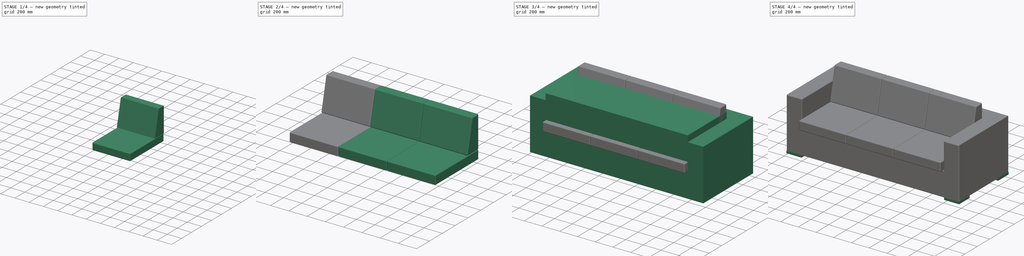
[diagram: build sequence overview — one tinted view per stage of 4, left to right]
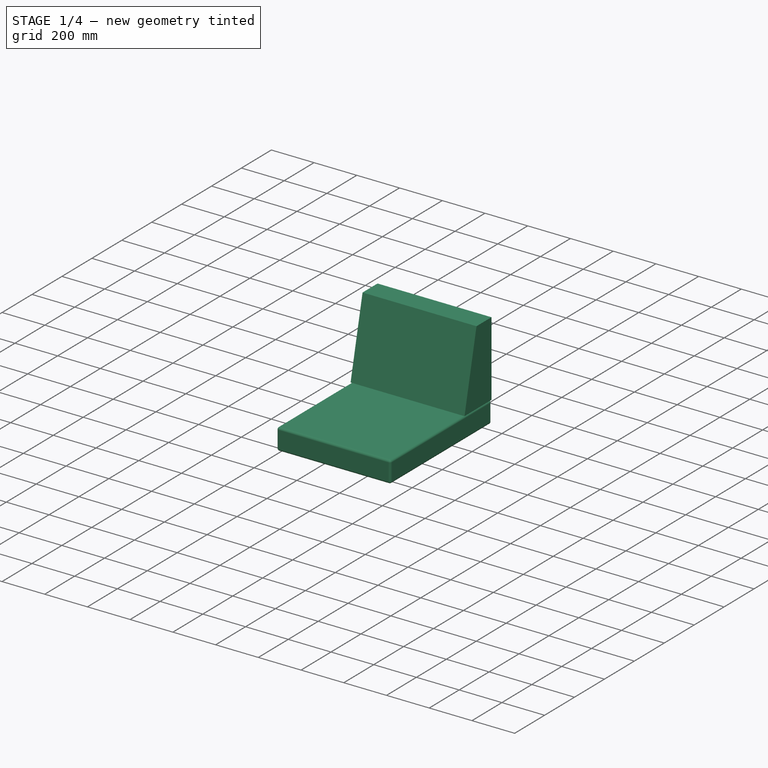
[diagram: stage 1 of 4 — iso view after this stage's code; geometry added in this stage tinted green]
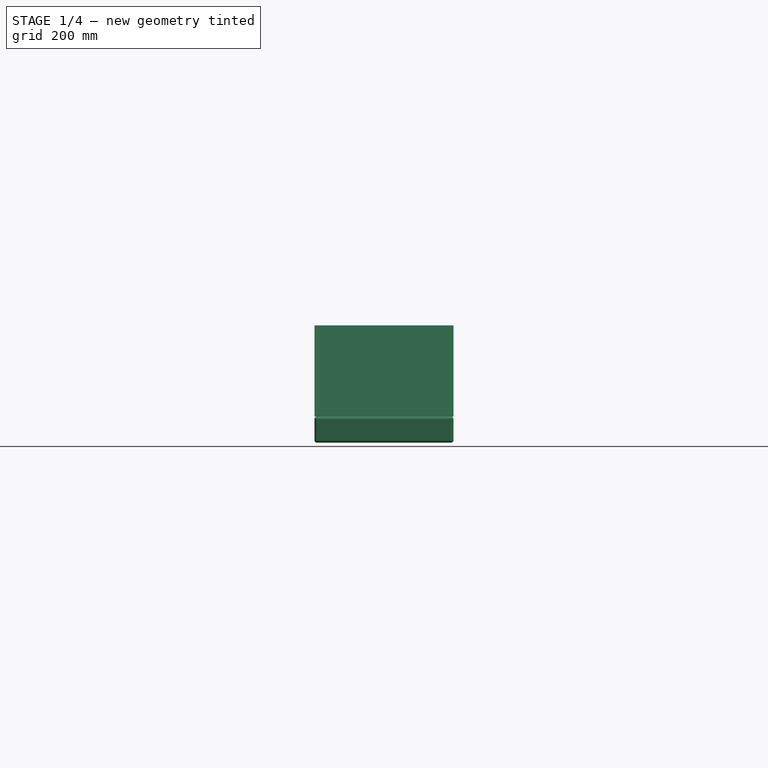
[diagram: stage 1 of 4 — front view after this stage's code; geometry added in this stage tinted green]
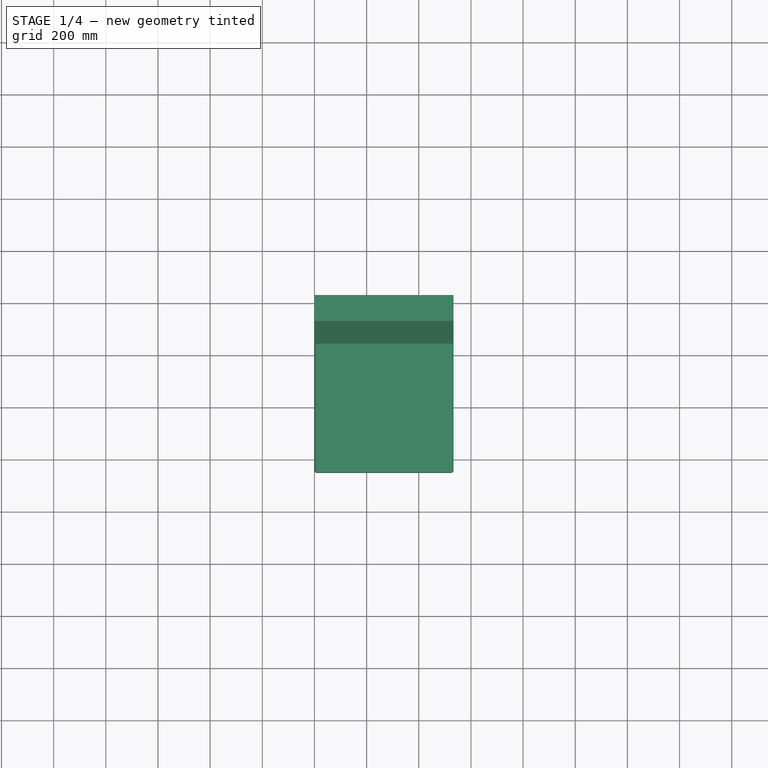
[diagram: stage 1 of 4 — top view after this stage's code; geometry added in this stage tinted green]
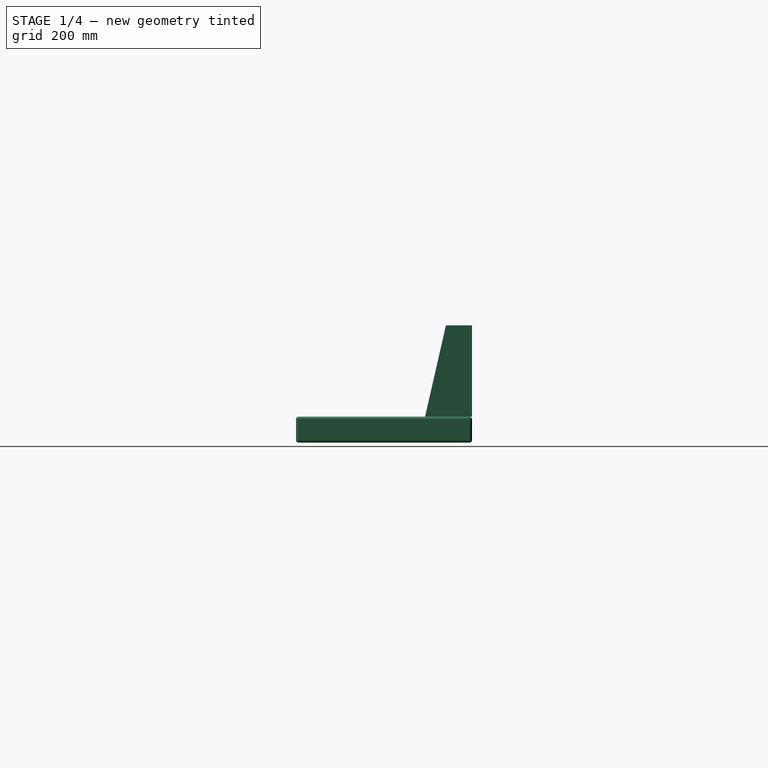
[diagram: stage 1 of 4 — right view after this stage's code; geometry added in this stage tinted green]
FCSTD DOCUMENT  (FreeCAD 1.0R38641 +468 (Git))
Label: Sofa_Armchair_R04
License: All rights reserved
LicenseURL: https://en.wikipedia.org/wiki/All_rights_reserved
objects: App::DocumentObjectGroup×12, Sketcher::SketchObject×8, App::MaterialObjectPython×6, App::TextDocument×5, Part::Extrusion×5, Part::Fillet×3, App::FeaturePython×3, Part::FeaturePython×2, Spreadsheet::Sheet×1, Part::Cut×1, App::VarSet×1, Part::Part2DObjectPython×1, App::DocumentObjectGroupPython×1
note: 31 computed .brp shape members not serialized (recipe doc carries the construction recipe); baked Part::Feature solids carry a one-line shape summary decoded from their .brp

FEATURE [Sketcher::SketchObject] Sketch1145
  ArcFitTolerance = 0
  AttachmentSupport = -> [Sketch1144]
  ExternalGeometry = -> [Sketch1144]
  FullyConstrained = true
  MakeInternals = false
  MapMode = 2
  Placement = pos=(0,0,300) rot=(0,0,1;0rad)
  expr: .Constraints.Length = (VarSet.Base_dimensions_B_Length - 2 * VarSet.Base_dimensions_B_Thickness_arms) / (VarSet.Seats_B_Number <= 1 ? 1 : VarSet.Seats_B_Number)
  expr: .Constraints.Width = VarSet.Seats_B_Width
  sketch-geometry (4):
    g0: LineSegment StartX=-800 StartY=-450 StartZ=0 EndX=-266.667 EndY=-450 EndZ=0
    g1: LineSegment StartX=-266.667 StartY=-450 StartZ=0 EndX=-266.667 EndY=225 EndZ=0
    g2: LineSegment StartX=-266.667 StartY=225 StartZ=0 EndX=-800 EndY=225 EndZ=0
    g3: LineSegment StartX=-800 StartY=225 StartZ=0 EndX=-800 EndY=-450 EndZ=0
  constraints (11):
    c: Coincident(g1,g2)
    c: Horizontal(g0)
    c: Horizontal(g2)
    c: Vertical(g1)
    c: Coincident(g3,g2)
    c: Vertical(g3)
    c: DistanceY(g1,g1) = 675  'Width'
    c: DistanceX(g0,g0) = 533.333  'Length'
    c: Coincident(g0,g3)
    c: Coincident(g0,g1)
    c: Coincident(g2,g-4)
FEATURE [Part::Extrusion] Extrude084143244  label="Seat_"
  Base = -> Sketch1145
  Dir = (0,0,1)
  DirMode = 2
  FaceMakerClass = Part::FaceMakerBullseye
  FaceMakerMode = 3
  LengthFwd = 100
  LengthRev = 0
  Solid = true
  Symmetric = false
  expr: LengthFwd = VarSet.Seats_B_Thickness
FEATURE [Sketcher::SketchObject] Sketch1146
  ArcFitTolerance = 0
  AttachmentOffset = pos=(0,0,266.667) rot=(0,0,1;0rad)
  AttachmentSupport = -> [Sketch1145]
  FullyConstrained = true
  MakeInternals = false
  MapMode = 7
  Placement = pos=(-533.333,225,300) rot=(0.57735,-0.57735,-0.57735;2.0944rad)
  expr: .AttachmentOffset.Base.z = Sketch1145.Constraints.Length / 2
  expr: .Constraints.Height_ = VarSet.Backrest_B_Height
  expr: .Constraints.Thickness_inferior = VarSet.Backrest_B_Thickness_inferior
  expr: .Constraints.Thickness_superior = VarSet.Backrest_B_Thickness_superior
  expr: Constraints[8] = VarSet.Seats_B_Thickness
  sketch-geometry (4):
    g0: LineSegment StartX=0 StartY=450 StartZ=0 EndX=0 EndY=100 EndZ=0
    g1: LineSegment StartX=0 StartY=100 StartZ=0 EndX=180 EndY=100 EndZ=0
    g2: LineSegment StartX=180 StartY=100 StartZ=0 EndX=100 EndY=450 EndZ=0
    g3: LineSegment StartX=100 StartY=450 StartZ=0 EndX=0 EndY=450 EndZ=0
  constraints (12):
    c: Vertical(g0)
    c: Horizontal(g1)
    c: Coincident(g1,g2)
    c: Coincident(g2,g3)
    c: Coincident(g3,g0)
    c: Horizontal(g3)
    c: DistanceY(g0,g0) = 350  'Height_'
    c: Coincident(g0,g1)
    c: DistanceY(g-1,g0) = 100
    c: DistanceX(g1,g1) = 180  'Thickness_inferior'
    c: DistanceX(g3,g3) = 100  'Thickness_superior'
    c: PointOnObject(g0,g-2)
FEATURE [Part::Extrusion] Extrude084143245  label="Backrest_unity_001"
  Base = -> Sketch1146
  Dir = (-1,0,0)
  DirMode = 2
  FaceMakerClass = Part::FaceMakerBullseye
  FaceMakerMode = 3
  LengthFwd = 533.333
  LengthRev = 0
  Reversed = true
  Solid = true
  Symmetric = true
  expr: LengthFwd = (VarSet.Base_dimensions_B_Length - 2 * VarSet.Base_dimensions_B_Thickness_arms) / (VarSet.Backrest_B_Number <= 1 ? 1 : VarSet.Backrest_B_Number)
FEATURE [Sketcher::SketchObject] Sketch1147
  ArcFitTolerance = 0
  AttachmentSupport = -> [Sketch]
  ExternalGeometry = -> [Sketch]
  FullyConstrained = true
  MakeInternals = false
  MapMode = 2
  expr: .Constraints.Length = VarSet.Base_dimensions_B_Length - VarSet.Feet_B_Length * 2
  expr: .Constraints.Width = VarSet.Base_dimensions_B_Width - VarSet.Feet_B_Length * 2
  sketch-geometry (21):
    g0: LineSegment StartX=-975 StartY=-400 StartZ=0 EndX=-805 EndY=-400 EndZ=0
    g1: LineSegment StartX=-805 StartY=-400 StartZ=0 EndX=-805 EndY=-230 EndZ=0
    g2: LineSegment StartX=-805 StartY=-230 StartZ=0 EndX=-975 EndY=-230 EndZ=0
    g3: LineSegment StartX=-975 StartY=-230 StartZ=0 EndX=-975 EndY=-400 EndZ=0
    g4: LineSegment StartX=-975 StartY=400 StartZ=0 EndX=-805 EndY=400 EndZ=0
    g5: LineSegment StartX=-805 StartY=400 StartZ=0 EndX=-805 EndY=230 EndZ=0
    g6: LineSegment StartX=-805 StartY=230 StartZ=0 EndX=-975 EndY=230 EndZ=0
    g7: LineSegment StartX=-975 StartY=230 StartZ=0 EndX=-975 EndY=400 EndZ=0
    g8: LineSegment StartX=975 StartY=400 StartZ=0 EndX=805 EndY=400 EndZ=0
    g9: LineSegment StartX=805 StartY=400 StartZ=0 EndX=805 EndY=230 EndZ=0
    g10: LineSegment StartX=805 StartY=230 StartZ=0 EndX=975 EndY=230 EndZ=0
    g11: LineSegment StartX=975 StartY=230 StartZ=0 EndX=975 EndY=400 EndZ=0
    g12: LineSegment StartX=975 StartY=-400 StartZ=0 EndX=805 EndY=-400 EndZ=0
    g13: LineSegment StartX=805 StartY=-400 StartZ=0 EndX=805 EndY=-230 EndZ=0
    g14: LineSegment StartX=805 StartY=-230 StartZ=0 EndX=975 EndY=-230 EndZ=0
    g15: LineSegment StartX=975 StartY=-230 StartZ=0 EndX=975 EndY=-400 EndZ=0
    g16: LineSegment [constr] StartX=805 StartY=-230 StartZ=0 EndX=805 EndY=230 EndZ=0
    g17: LineSegment [constr] StartX=805 StartY=230 StartZ=0 EndX=-805 EndY=230 EndZ=0
    g18: LineSegment [constr] StartX=-805 StartY=230 StartZ=0 EndX=-805 EndY=-230 EndZ=0
    g19: LineSegment [constr] StartX=-805 StartY=-230 StartZ=0 EndX=805 EndY=-230 EndZ=0
    g20: GeomPoint [constr] X=-1e-16 Y=0 Z=0
  constraints (52):
    c: Coincident(g0,g1)
    c: Coincident(g1,g2)
    c: Coincident(g2,g3)
    c: Coincident(g3,g0)
    c: Horizontal(g0)
    c: Horizontal(g2)
    c: Vertical(g1)
    c: Vertical(g3)
    c: Coincident(g0,g-5)
    c: Coincident(g4,g5)
    c: Coincident(g5,g6)
    c: Coincident(g6,g7)
    c: Coincident(g7,g4)
    c: Horizontal(g4)
    c: Horizontal(g6)
    c: Vertical(g5)
    c: Vertical(g7)
    c: Coincident(g4,g-4)
    c: Coincident(g8,g9)
    c: Coincident(g9,g10)
    c: Coincident(g10,g11)
    c: Coincident(g11,g8)
    c: Horizontal(g8)
    c: Horizontal(g10)
    c: Vertical(g9)
    c: Vertical(g11)
    c: Coincident(g8,g-6)
    c: Coincident(g12,g13)
    c: Coincident(g13,g14)
    c: Coincident(g14,g15)
    c: Coincident(g15,g12)
    c: Horizontal(g12)
    c: Horizontal(g14)
    c: Vertical(g13)
    c: Vertical(g15)
    c: Coincident(g12,g-6)
    c: Coincident(g16,g17)
    c: Coincident(g17,g18)
    c: Coincident(g18,g19)
    c: Coincident(g19,g16)
    c: Horizontal(g17)
    c: Horizontal(g19)
    c: Vertical(g16)
    c: Vertical(g18)
    c: Symmetric(g17,g16,g20)
    c: Coincident(g20,g-1)
    c: Coincident(g17,g5)
    c: Coincident(g9,g16)
    c: Coincident(g13,g16)
    c: Coincident(g1,g18)
    c: DistanceX(g17,g17) = 1610  'Length'
    c: DistanceY(g18,g18) = 460  'Width'
FEATURE [App::DocumentObjectGroup] Group247  label="02-Elements_to_move_rotate"
  Group = -> [Sketch]
FEATURE [Sketcher::SketchObject] Sketch1148  label="Sketch1148_Path_seats_"
  ArcFitTolerance = 0
  AttachmentSupport = -> [Sketch]
  FullyConstrained = true
  MakeInternals = false
  MapMode = 2
  expr: .Constraints.Length = VarSet.Seats_B_Length
  sketch-geometry (1):
    g0: LineSegment StartX=0 StartY=0 StartZ=0 EndX=1600 EndY=0 EndZ=0
  constraints (3):
    c: Coincident(g0,g-1)
    c: Horizontal(g0)
    c: DistanceX(g0,g0) = 1600  'Length'
FEATURE [Sketcher::SketchObject] Sketch1149  label="Sketch1149_Path_backrests_"
  ArcFitTolerance = 0
  AttachmentSupport = -> [Sketch]
  FullyConstrained = true
  MakeInternals = false
  MapMode = 2
  expr: .Constraints.Length = VarSet.Seats_B_Length
  sketch-geometry (1):
    g0: LineSegment StartX=0 StartY=0 StartZ=0 EndX=1600 EndY=0 EndZ=0
  constraints (3):
    c: Coincident(g0,g-1)
    c: Horizontal(g0)
    c: DistanceX(g0,g0) = 1600  'Length'
FEATURE [App::DocumentObjectGroup] Group252  label="06-Paths_"
  Group = -> [Sketch1148,Sketch1149]
FEATURE [Part::Fillet] Fillet
  Base = -> Extrude084143244
  EdgeLinks = -> Extrude084143244 [Edge1,Edge2,Edge3,Edge4,Edge5,Edge6,Edge7,Edge8,Edge9,Edge10,Edge11,Edge12]
  Edges = 12 edges r=10: [Edge1,Edge2,Edge3,Edge4,Edge5,Edge6,Edge7,Edge8,Edge9,Edge10,Edge11,Edge12]
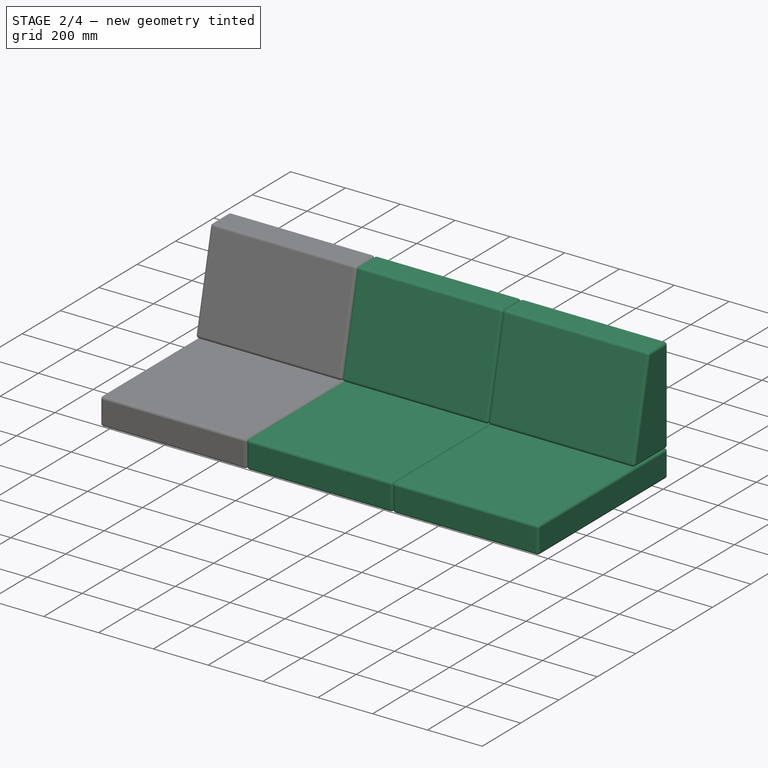
[diagram: stage 2 of 4 — iso view after this stage's code; geometry added in this stage tinted green]
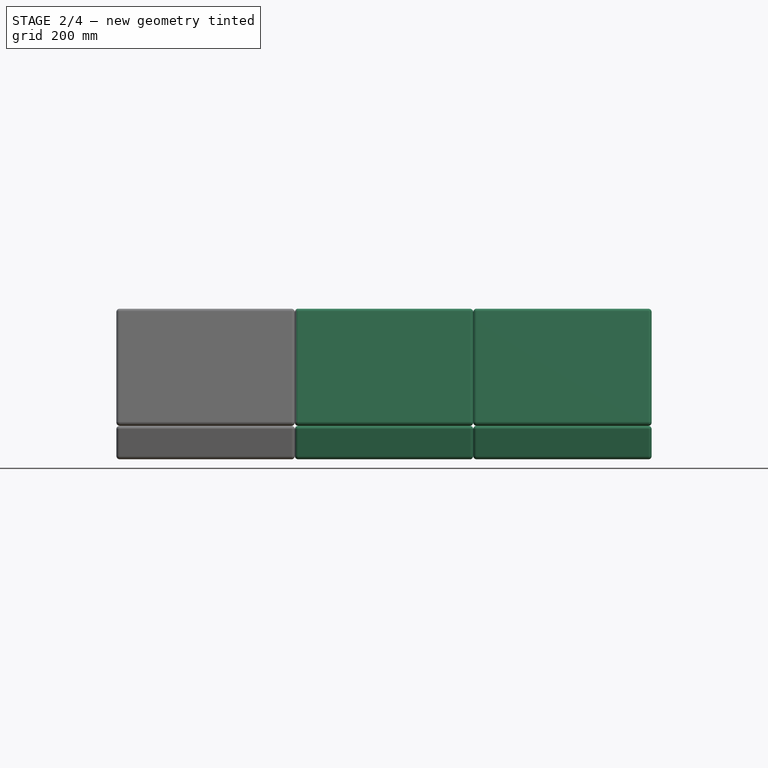
[diagram: stage 2 of 4 — front view after this stage's code; geometry added in this stage tinted green]
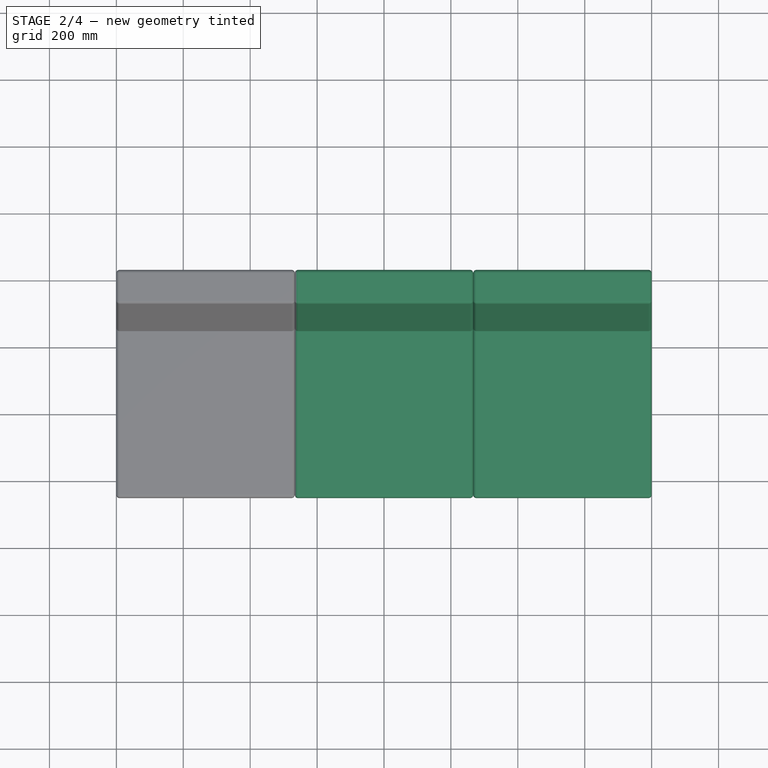
[diagram: stage 2 of 4 — top view after this stage's code; geometry added in this stage tinted green]
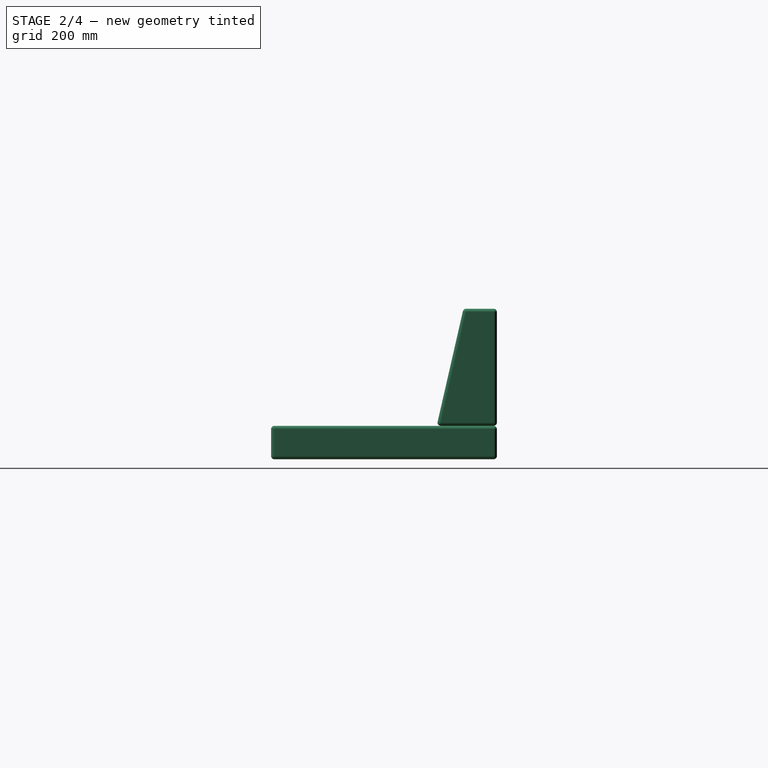
[diagram: stage 2 of 4 — right view after this stage's code; geometry added in this stage tinted green]
FEATURE [Part::Fillet] Fillet015152  label="Backrest_unity_"
  Base = -> Extrude084143245
  EdgeLinks = -> Extrude084143245 [Edge1,Edge2,Edge3,Edge4,Edge5,Edge6,Edge7,Edge8,Edge9,Edge10,Edge11,Edge12]
  Edges = 12 edges r=10: [Edge1,Edge2,Edge3,Edge4,Edge5,Edge6,Edge7,Edge8,Edge9,Edge10,Edge11,Edge12]
FEATURE [App::MaterialObjectPython] Material058  label="fabric generic001"  # material (typed FeaturePython)
  Description = A standard fabric
  Material = AuthorAndLicense=(c) 2015 Bernd Hahnebach (CC-BY 3.0); CardName=Wood-Generic; Color=(0.8, 0.8, 0.8, 1.0); Density=700 kg/m^3; Description=A standard fabric; DiffuseColor=(0.1568627506494522, 0.18039216101169586, 0.22745098173618317); Father=Aggregate; Name=fabric generic001; PoissonRatio=0.05; ProductURL=https://en.wikipedia.org/wiki/Wood; SectionColor=(0.8, 0.8, 0.8, 1.0); Transparency=0; ViewColor=(0.8, 0.8, 0.8, 1.0); YoungsModulus=12000 MPa
  ProductURL = https://en.wikipedia.org/wiki/Wood
  Transparency = 0
FEATURE [App::VarSet] VarSet  label="01-Prop_Sofa_Armchair_configurations_#_"
  A_Component_Label = Sofa three seats
  Backrest_B_Height = 350
  Backrest_B_Number = 3
  Backrest_B_Thickness_inferior = 180
  Backrest_B_Thickness_superior = 100
  Backrest_C_Material = -> Material058
  Base_dimensions_B_Height = 600
  Base_dimensions_B_Length = 1950
  Base_dimensions_B_Thickness_arms = 175
  Base_dimensions_B_Width = 800
  Base_dimensions_C_Material = -> Material057
  Feet_A_Feet = false
  Feet_B_Height = 25
  Feet_B_Length = 170
  Feet_C_Material = -> Material049
  Seats_B_Depth = 370
  Seats_B_Height_floor = 400
  Seats_B_Length = 1600
  Seats_B_Number = 3
  Seats_B_Thickness = 100
  Seats_B_Width = 675
  Seats_C_Material = -> Material058
  Visualization_A_Visualization = true
  expr: Seats_B_Length = Base_dimensions_B_Length - 2 * Base_dimensions_B_Thickness_arms
FEATURE [Part::FeaturePython] PathArray  label="02-PathArray_Seats_"  # WARN: FeaturePython — macro-defined, semantics opaque (R4)
  Align = false
  AlignMode = 0
  Base = -> Fillet
  Count = 3
  EndOffset = 533.333
  ExtraTranslation = (0,0,0)
  ForceVertical = false
  Fuse = false
  Material = -> Material058
  PathObject = -> Sketch1148
  StartOffset = 0
  TangentVector = (1,0,0)
  VerticalVector = (0,0,1)
  expr: .ExtraTranslation.x = -Sketch1148.Placement.Base.x
  expr: .ExtraTranslation.y = -Sketch1148.Placement.Base.y
  expr: .ExtraTranslation.z = -Sketch1148.Placement.Base.z
  expr: Count = VarSet.Seats_B_Number <= 1 ? 1 : VarSet.Seats_B_Number
  expr: EndOffset = VarSet.Seats_B_Length / (VarSet.Seats_B_Number <= 1 ? 1 : VarSet.Seats_B_Number)
  expr: Material = VarSet.Seats_C_Material
  expr: Visibility = VarSet.Visualization_A_Visualization
FEATURE [Part::FeaturePython] PathArray001  label="03-PathArray001_Backrests_"  # WARN: FeaturePython — macro-defined, semantics opaque (R4)
  Align = false
  AlignMode = 0
  Base = -> Fillet015152
  Count = 3
  EndOffset = 533.333
  ExtraTranslation = (0,0,0)
  ForceVertical = false
  Fuse = false
  Material = -> Material058
  PathObject = -> Sketch1149
  StartOffset = 0
  TangentVector = (1,0,0)
  VerticalVector = (0,0,1)
  expr: .ExtraTranslation.x = -Sketch1149.Placement.Base.x
  expr: .ExtraTranslation.y = -Sketch1149.Placement.Base.y
  expr: .ExtraTranslation.z = -Sketch1149.Placement.Base.z
  expr: Count = VarSet.Backrest_B_Number <= 1 ? 1 : VarSet.Backrest_B_Number
  expr: EndOffset = VarSet.Seats_B_Length / (VarSet.Backrest_B_Number <= 1 ? 1 : VarSet.Backrest_B_Number)
  expr: Material = VarSet.Backrest_C_Material
  expr: Visibility = VarSet.Visualization_A_Visualization
FEATURE [App::DocumentObjectGroup] Group248  label="03-Component_parts_"
  Group = -> [Fillet015151,PathArray,PathArray001,Extrude084143246]
FEATURE [App::FeaturePython] Section003  label="Plan_"  # WARN: FeaturePython — macro-defined, semantics opaque (R4)
  AttacherType = Attacher::AttachEngine3D
  AttachmentOffset = pos=(0,0,1000) rot=(0,0,1;0rad)
  AttachmentSupport = -> [Sketch]
  Clip = false
  Depth = 0
  MapMode = 2
  Objects = -> [Group248]
  OnlySolids = true
  Placement = pos=(0,0,1000) rot=(0,0,1;0rad)
  UseMaterialColorForFill = false
  expr: .AttachmentOffset.Base.z = VarSet.Base_dimensions_B_Height + 400 mm
FEATURE [App::FeaturePython] Section004  label="Right_view_"  # WARN: FeaturePython — macro-defined, semantics opaque (R4)
  AttacherType = Attacher::AttachEngine3D
  AttachmentOffset = pos=(0,600,1375) rot=(0,0,1;0rad)
  AttachmentSupport = -> [Sketch]
  Clip = false
  Depth = 0
  MapMode = 4
  Objects = -> [Group248]
  OnlySolids = true
  Placement = pos=(1375,0,600) rot=(0.57735,0.57735,0.57735;2.0944rad)
  UseMaterialColorForFill = false
  expr: .AttachmentOffset.Base.z = VarSet.Base_dimensions_B_Length / 2 + 400 mm
FEATURE [App::FeaturePython] Section005  label="Left_view_"  # WARN: FeaturePython — macro-defined, semantics opaque (R4)
  AttacherType = Attacher::AttachEngine3D
  AttachmentOffset = pos=(0,600,1375) rot=(0,0,1;0rad)
  AttachmentSupport = -> [Sketch]
  Clip = false
  Depth = 0
  MapMode = 4
  Objects = -> [Group248]
  OnlySolids = true
  Placement = pos=(-1375,0,600) rot=(0.57735,-0.57735,-0.57735;2.0944rad)
  UseMaterialColorForFill = false
  expr: .AttachmentOffset.Base.z = VarSet.Base_dimensions_B_Length / 2 + 400 mm
FEATURE [Part::Part2DObjectPython] Shape2DView003  label="Plan_Sofa three seats_#"  # Draft 2D object (typed FeaturePython)
  AutoUpdate = true
  Base = -> Section003
  Clip = false
  FuseArch = false
  HiddenLines = false
  InPlace = false
  OnlySolids = false
  Projection = (0,0,1)
  ProjectionMode = 0
  SegmentLength = 0.05
  Tessellation = false
  VisibleOnly = false
  expr: Label = <<Plan_>> + VarSet.A_Component_Label + <<_#>>
FEATURE [App::DocumentObjectGroup] Group006  label="09-Section_plan_#_"
  Group = -> [Section003,Section004,Section005,Shape2DView003]
FEATURE [App::DocumentObjectGroup] Group304  label="Fabric_"
  Group = -> [Material057,Material058]
FEATURE [App::DocumentObjectGroupPython] MaterialContainer001  label="02-Materials"  # scripted group (container) (typed FeaturePython)
  Group = -> [Group304,Group295,Group294]
FEATURE [App::DocumentObjectGroup] Group251  label="08-Materials_sofa_Armchair_#_"
  Group = -> [MaterialContainer001]
FEATURE [App::DocumentObjectGroup] Group013  label="Sofa three seats_#_"
  Group = -> [VarSet,Group247,Group248,Group249,Group250,Group252,Group256,Group251,Group006]
  expr: Label = VarSet.A_Component_Label + <<_#_>>
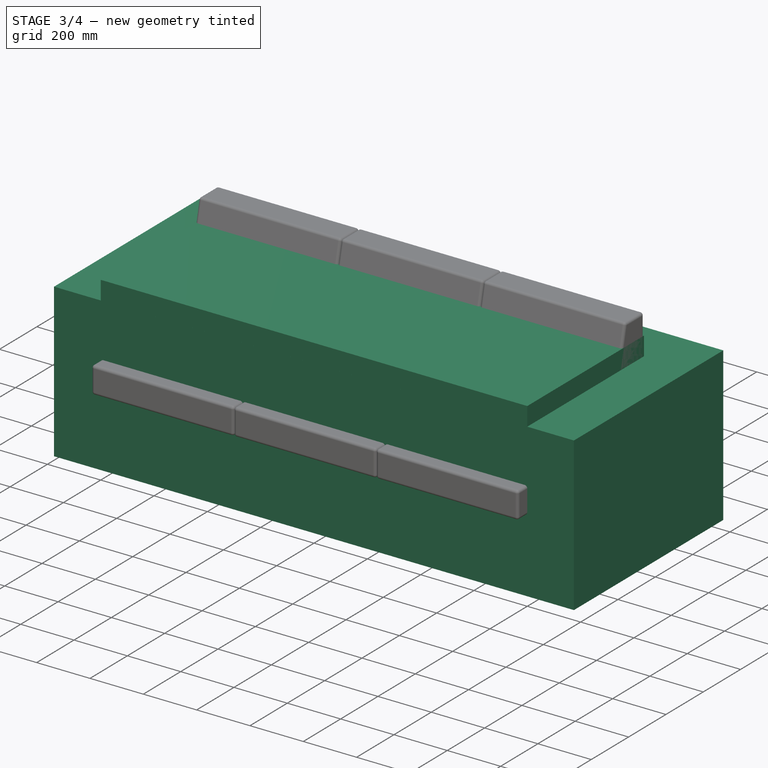
[diagram: stage 3 of 4 — iso view after this stage's code; geometry added in this stage tinted green]
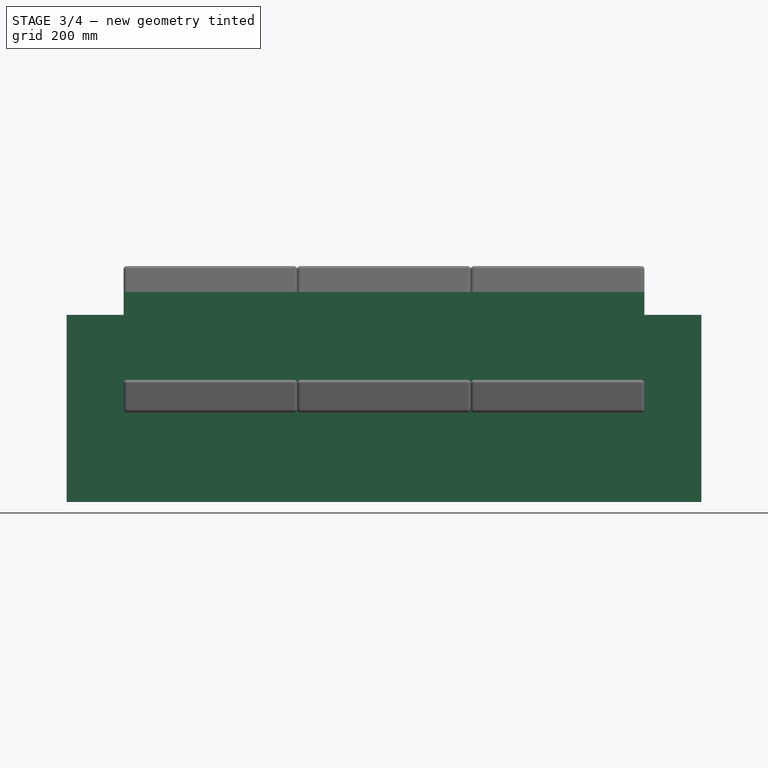
[diagram: stage 3 of 4 — front view after this stage's code; geometry added in this stage tinted green]
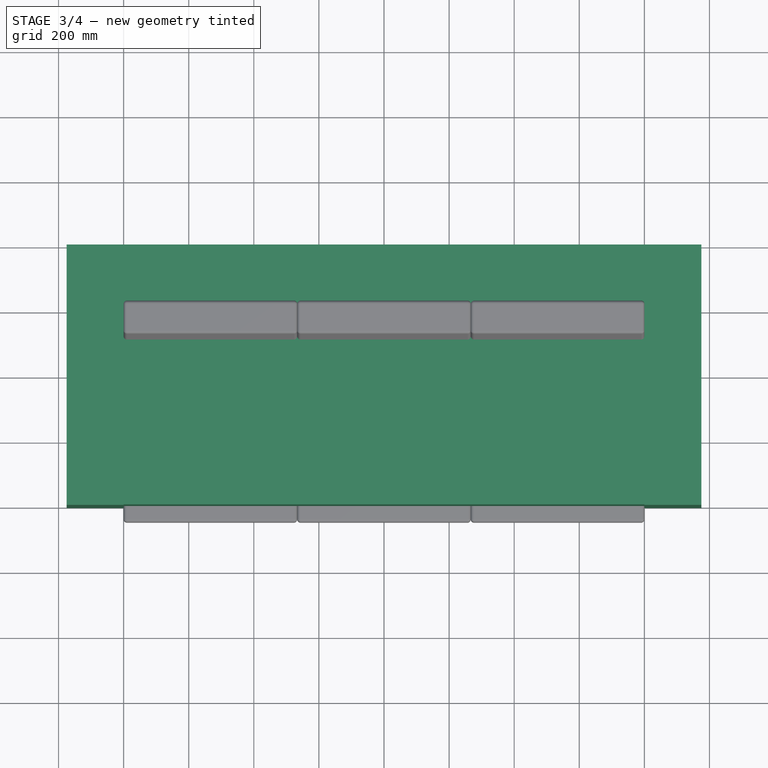
[diagram: stage 3 of 4 — top view after this stage's code; geometry added in this stage tinted green]
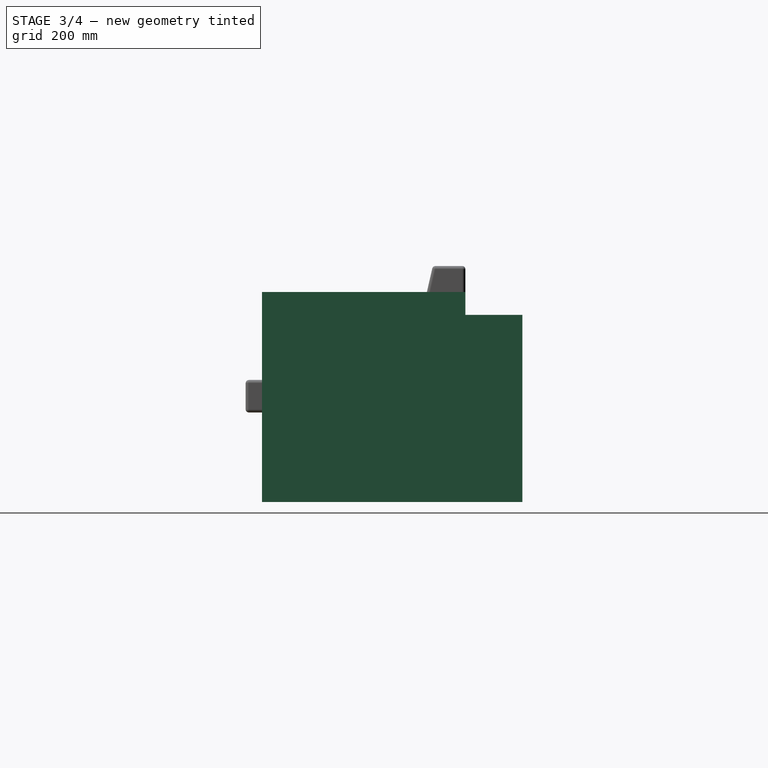
[diagram: stage 3 of 4 — right view after this stage's code; geometry added in this stage tinted green]
FEATURE [Spreadsheet::Sheet] Spreadsheet003  label="Spreadsheet_Sofa three seats_outputs_#"
  cells = A1='Description:; A2==<<%s>> % VarSet.A_Component_Label + << with %s x %s x %s>> % tuple(VarSet.Base_dimensions_B_Length; VarSet.Base_dimensions_B_Width; VarSet.Base_dimensions_B_Height) + << in length, width and height, body of %s>> % VarSet.Base_dimensions_C_Material.Label + <<, composed of %s>> % VarSet.Seats_B_Number + << seats of %s>> % VarSet.Seats_C_Material.Label + <<, %s>> % VarSet.Backrest_B_Number + << backrests of %s>> % VarSet.Backrest_C_Material.Label + << and feet of %s>> % VarSet.Feet_C_Material.Label + <<.>>; A3='Parts; B3='L; C3='H; D3='W; E3='T; F3='D; G3='Materials; H3='Quantities; A4='01-Body; B4==VarSet.Base_dimensions_B_Length; C4==VarSet.Base_dimensions_B_Height; D4==VarSet.Base_dimensions_B_Width; G4==VarSet.Base_dimensions_C_Material.Label; H4=1; A5='02-Seats; B5==VarSet.Seats_B_Length / VarSet.Seats_B_Number; D5==VarSet.Seats_B_Width; E5==VarSet.Seats_B_Thickness; G5==VarSet.Seats_C_Material.Label; H5==VarSet.Seats_B_Number; A6='03-Backrests; B6==VarSet.Seats_B_Length / VarSet.Backrest_B_Number; C6==VarSet.Backrest_B_Height; D6==VarSet.Backrest_B_Height; E6==<< from %s>> % VarSet.Backrest_B_Thickness_superior + << to %s>> % VarSet.Backrest_B_Thickness_inferior; G6==VarSet.Backrest_C_Material.Label; H6==VarSet.Backrest_B_Number; A7='04-Feet; B7==VarSet.Feet_B_Length; C7==VarSet.Feet_B_Height; D7==VarSet.Feet_B_Length; G7==VarSet.Feet_C_Material.Label; H7=4
  expr: Label = <<Spreadsheet_>> + VarSet.A_Component_Label + <<_outputs_#>>
FEATURE [App::DocumentObjectGroup] Group249  label="04-Spreadsheet_"
  Group = -> [Spreadsheet003]
FEATURE [App::TextDocument] Text_document002  label="Component_file_configurations_"
  Text = <blob: 3160 chars omitted>
FEATURE [App::TextDocument] Text_document003  label="Guidelines_new_objects_properties_"
  Text = <blob: 3302 chars omitted>
FEATURE [App::DocumentObjectGroup] Group250  label="05-Guidelines_"
  Group = -> [Text_document002,Text_document003]
FEATURE [Sketcher::SketchObject] Sketch  label="Sofa three seats_move_rotate_#_"
  ArcFitTolerance = 0
  FullyConstrained = true
  MakeInternals = false
  expr: .Constraints.Length = VarSet.Base_dimensions_B_Length
  expr: .Constraints.Width = VarSet.Base_dimensions_B_Width
  expr: Constraints[41] = VarSet.Base_dimensions_B_Thickness_arms
  expr: Constraints[42] = VarSet.Base_dimensions_B_Thickness_arms
  expr: Constraints[43] = VarSet.Base_dimensions_B_Thickness_arms
  expr: Label = VarSet.A_Component_Label + <<_move_rotate_#_>>
  sketch-geometry (16):
    g0: LineSegment StartX=-975 StartY=400 StartZ=0 EndX=-975 EndY=-400 EndZ=0
    g1: LineSegment StartX=-975 StartY=-400 StartZ=0 EndX=975 EndY=-400 EndZ=0
    g2: LineSegment StartX=975 StartY=-400 StartZ=0 EndX=975 EndY=400 EndZ=0
    g3: LineSegment StartX=975 StartY=400 StartZ=0 EndX=-975 EndY=400 EndZ=0
    g4: GeomPoint [constr] X=0 Y=0 Z=0
    g5: Circle CenterX=0 CenterY=0 CenterZ=0 NormalX=0 NormalY=0 NormalZ=1 AngleXU=0 Radius=50
    g6: LineSegment [constr] StartX=-1075 StartY=500 StartZ=0 EndX=-1075 EndY=-500 EndZ=0
    g7: LineSegment [constr] StartX=-1075 StartY=-500 StartZ=0 EndX=1075 EndY=-500 EndZ=0
    g8: LineSegment [constr] StartX=1075 StartY=-500 StartZ=0 EndX=1075 EndY=500 EndZ=0
    g9: LineSegment [constr] StartX=1075 StartY=500 StartZ=0 EndX=-1075 EndY=500 EndZ=0
    g10: GeomPoint [constr] X=0 Y=0 Z=0
    g11: LineSegment StartX=-1075 StartY=0 StartZ=0 EndX=1075 EndY=0 EndZ=0
    g12: LineSegment StartX=0 StartY=500 StartZ=0 EndX=0 EndY=-500 EndZ=0
    g13: LineSegment StartX=-800 StartY=225 StartZ=0 EndX=800 EndY=225 EndZ=0
    g14: LineSegment StartX=-800 StartY=225 StartZ=0 EndX=-800 EndY=-400 EndZ=0
    g15: LineSegment StartX=800 StartY=225 StartZ=0 EndX=800 EndY=-400 EndZ=0
  constraints (44):
    c: Coincident(g0,g1)
    c: Coincident(g1,g2)
    c: Coincident(g2,g3)
    c: Coincident(g3,g0)
    c: Horizontal(g1)
    c: Horizontal(g3)
    c: Vertical(g0)
    c: Vertical(g2)
    c: Symmetric(g1,g0,g4)
    c: Coincident(g4,g-1)
    c: DistanceX(g3,g3) = 1950  'Length'
    c: DistanceY(g2,g2) = 800  'Width'
    c: Coincident(g5,g4)
    c: Diameter(g5) = 100
    c: Coincident(g6,g7)
    c: Coincident(g7,g8)
    c: Coincident(g8,g9)
    c: Coincident(g9,g6)
    c: Horizontal(g7)
    c: Horizontal(g9)
    c: Vertical(g6)
    c: Vertical(g8)
    c: Symmetric(g7,g6,g10)
    c: Coincident(g10,g4)
    c: DistanceX(g2,g8) = 100
    c: DistanceY(g2,g8) = 100
    c: PointOnObject(g11,g6)
    c: PointOnObject(g11,g8)
    c: Horizontal(g11)
    c: PointOnObject(g12,g9)
    c: PointOnObject(g12,g7)
    c: Vertical(g12)
    c: PointOnObject(g12,g-2)
    c: PointOnObject(g11,g-1)
    c: Horizontal(g13)
    c: PointOnObject(g14,g1)
    c: Vertical(g14)
    c: PointOnObject(g15,g1)
    c: Vertical(g15)
    c: Coincident(g14,g13)
    c: Coincident(g13,g15)
    c: DistanceX(g13,g2) = 175
    c: DistanceX(g0,g13) = 175
    c: DistanceY(g13,g2) = 175
FEATURE [Sketcher::SketchObject] Sketch1143
  ArcFitTolerance = 0
  AttachmentOffset = pos=(0,0,25) rot=(0,0,1;0rad)
  AttachmentSupport = -> [Sketch]
  Dimensions_Length = 1790
  FullyConstrained = true
  MakeInternals = false
  MapMode = 2
  Placement = pos=(0,0,25) rot=(0,0,1;0rad)
  expr: .AttachmentOffset.Base.z = VarSet.Feet_B_Height
  expr: .Constraints.Lenght_ = VarSet.Base_dimensions_B_Length
  expr: .Constraints.Width_ = VarSet.Base_dimensions_B_Width
  expr: .Placement.Base.z = VarSet.Feet_B_Height
  expr: Dimensions_Length = 1790 mm
  sketch-geometry (4):
    g0: LineSegment StartX=-975 StartY=400 StartZ=0 EndX=975 EndY=400 EndZ=0
    g1: LineSegment StartX=975 StartY=400 StartZ=0 EndX=975 EndY=-400 EndZ=0
    g2: LineSegment StartX=975 StartY=-400 StartZ=0 EndX=-975 EndY=-400 EndZ=0
    g3: LineSegment StartX=-975 StartY=-400 StartZ=0 EndX=-975 EndY=400 EndZ=0
  constraints (10):
    c: Coincident(g0,g1)
    c: Coincident(g1,g2)
    c: Coincident(g2,g3)
    c: Coincident(g3,g0)
    c: Horizontal(g2)
    c: Vertical(g3)
    c: Symmetric(g0,g0,g-2)
    c: Symmetric(g0,g1,g-1)
    c: DistanceY(g1,g1) = 800  'Width_'
    c: DistanceX(g0,g0) = 1950  'Lenght_'
FEATURE [Part::Extrusion] Extrude084143242  label="Extrude084143243"
  Base = -> Sketch1143
  Dir = (0,0,1)
  DirMode = 2
  FaceMakerClass = Part::FaceMakerBullseye
  FaceMakerMode = 3
  LengthFwd = 575
  LengthRev = 0
  Solid = true
  Symmetric = false
  expr: LengthFwd = VarSet.Base_dimensions_B_Height - VarSet.Feet_B_Height
FEATURE [Sketcher::SketchObject] Sketch1144
  ArcFitTolerance = 0
  AttachmentOffset = pos=(0,0,300) rot=(0,0,1;0rad)
  AttachmentSupport = -> [Sketch]
  ExternalGeometry = -> [Sketch]
  FullyConstrained = true
  MakeInternals = false
  MapMode = 2
  Placement = pos=(0,0,300) rot=(0,0,1;0rad)
  expr: .AttachmentOffset.Base.z = VarSet.Seats_B_Height_floor - VarSet.Seats_B_Thickness
  expr: .Constraints.Arm_thickness_left = VarSet.Base_dimensions_B_Thickness_arms
  expr: .Constraints.Arm_thickness_rear = VarSet.Base_dimensions_B_Thickness_arms
  expr: .Constraints.Arm_thickness_right = VarSet.Base_dimensions_B_Thickness_arms
  sketch-geometry (4):
    g0: LineSegment StartX=-800 StartY=225 StartZ=0 EndX=800 EndY=225 EndZ=0
    g1: LineSegment StartX=800 StartY=225 StartZ=0 EndX=800 EndY=-400 EndZ=0
    g2: LineSegment StartX=800 StartY=-400 StartZ=0 EndX=-800 EndY=-400 EndZ=0
    g3: LineSegment StartX=-800 StartY=-400 StartZ=0 EndX=-800 EndY=225 EndZ=0
  constraints (12):
    c: Coincident(g0,g1)
    c: Coincident(g1,g2)
    c: Coincident(g2,g3)
    c: Coincident(g3,g0)
    c: Horizontal(g0)
    c: Horizontal(g2)
    c: Vertical(g1)
    c: Vertical(g3)
    c: DistanceX(g1,g-5) = 175  'Arm_thickness_right'
    c: DistanceY(g0,g-3) = 175  'Arm_thickness_rear'
    c: DistanceX(g-5,g2) = 175  'Arm_thickness_left'
    c: Horizontal(g2,g-5)
FEATURE [Part::Extrusion] Extrude084143243  label="Extrude084143244"
  Base = -> Sketch1144
  Dir = (0,0,1)
  DirMode = 2
  FaceMakerClass = Part::FaceMakerBullseye
  FaceMakerMode = 3
  LengthFwd = 370
  LengthRev = 0
  Solid = true
  Symmetric = false
  expr: LengthFwd = VarSet.Seats_B_Depth
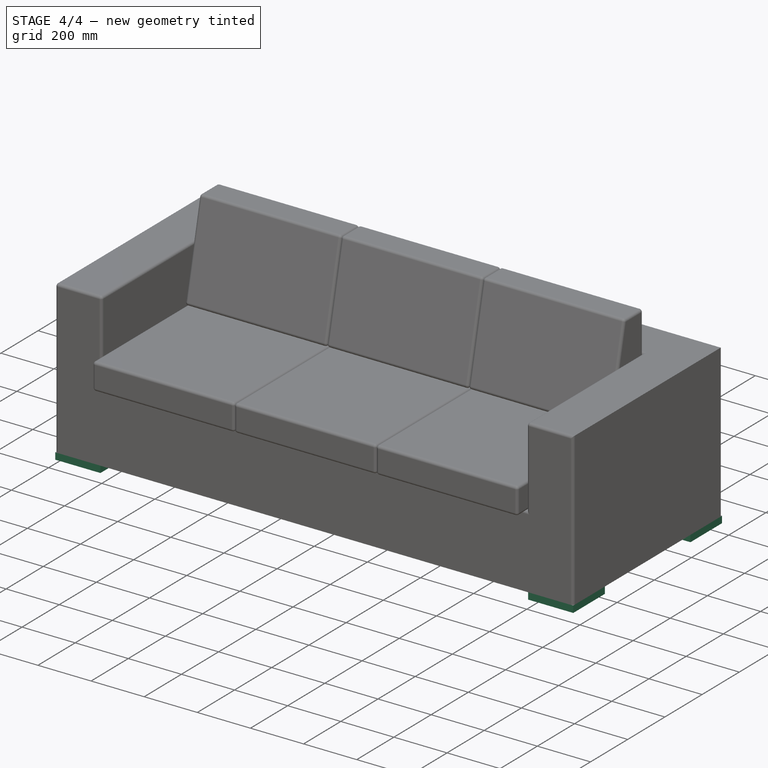
[diagram: stage 4 of 4 — iso view after this stage's code; geometry added in this stage tinted green]
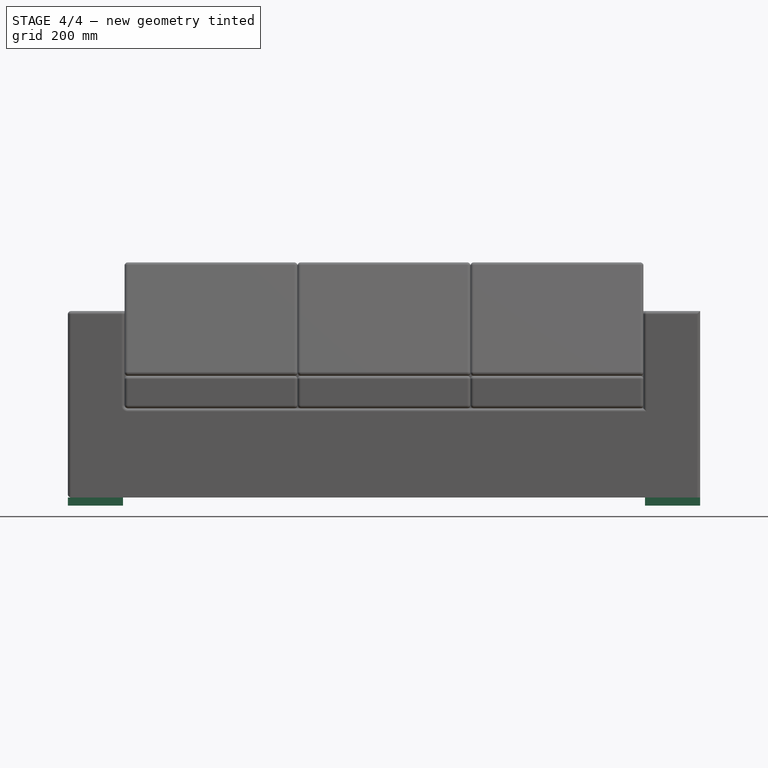
[diagram: stage 4 of 4 — front view after this stage's code; geometry added in this stage tinted green]
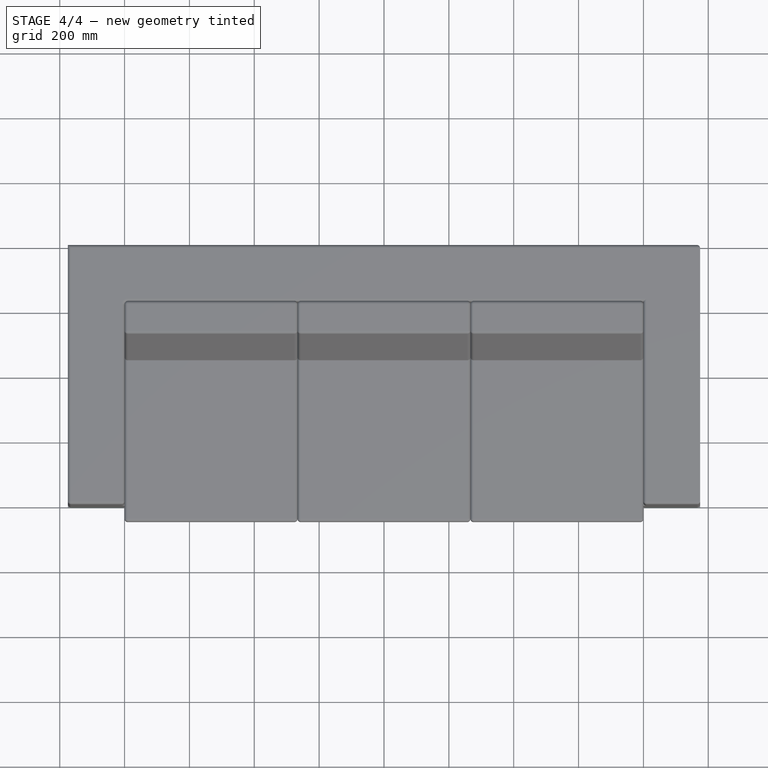
[diagram: stage 4 of 4 — top view after this stage's code; geometry added in this stage tinted green]
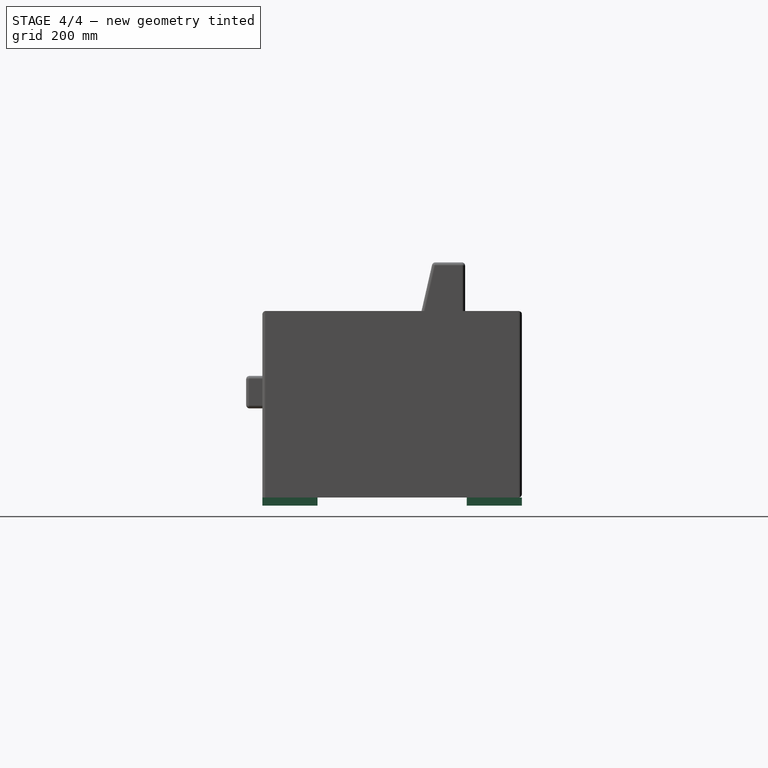
[diagram: stage 4 of 4 — right view after this stage's code; geometry added in this stage tinted green]
FEATURE [Part::Cut] Cut001  label="Body_001"
  Base = -> Extrude084143242
  Tool = -> Extrude084143243
FEATURE [App::TextDocument] Text_document011  label="Model_01_Sofa_3_seats_"
  Text = <blob: 2215 chars omitted>
FEATURE [App::TextDocument] Text_document012  label="Model_02_Sofa_2_seats_"
  Text = <blob: 2213 chars omitted>
FEATURE [App::TextDocument] Text_document013  label="Model_03_Armchair_"
  Text = <blob: 2214 chars omitted>
FEATURE [App::DocumentObjectGroup] Group256  label="07-Macros_models_(open_copy_paste_Python_console)"
  Group = -> [Text_document011,Text_document012,Text_document013]
FEATURE [App::MaterialObjectPython] Material048  label="aluminum generic"  # material (typed FeaturePython)
  Material = AuthorAndLicense=Uwe Stöhr; CardName=Aluminum-Generic; Color=(0.8, 0.8, 0.8, 1.0); Density=2700 kg/m^3; DiffuseColor=(0.8, 0.8, 0.8, 1.0); ElectricalConductivity=370370.4 S/m; Father=Metal; KindOfMaterial=Aluminium; Name=aluminum generic; PoissonRatio=0.35; RelativePermeability=1.0; SectionColor=(0.8, 0.8, 0.8, 1.0); ShearModulus=25.0 GPa; SpecificHeat=897.0 J/kg/K; ThermalConductivity=237.0 W/m/K; ThermalExpansionCoefficient=23.1 µm/m/K; Transparency=0; UltimateTensileStrength=310 MPa; ViewColor=(0.8, 0.8, 0.8, 1.0); YoungsModulus=70000 MPa
  Transparency = 0
FEATURE [App::MaterialObjectPython] Material049  label="iron generic"  # material (typed FeaturePython)
  Material = AuthorAndLicense=Uwe Stöhr; CardName=Iron-Generic; Color=(0.8, 0.8, 0.8, 1.0); Density=7874 kg/m^3; DiffuseColor=(0.3607843220233917, 0.3607843220233917, 0.40784314274787903); ElectricalConductivity=10.3 MS/m; Father=Metal; KindOfMaterial=Iron; Name=iron generic; PoissonRatio=0.29; RelativePermeability=5000.0; SectionColor=(0.8, 0.8, 0.8, 1.0); ShearModulus=82.0 GPa; SpecificHeat=460.5 J/kg/K; ThermalConductivity=80.4 W/m/K; ThermalExpansionCoefficient=11.8 µm/m/K; Transparency=0; UltimateTensileStrength=497 MPa; ViewColor=(0.8, 0.8, 0.8, 1.0); YieldStrength=428 MPa; YoungsModulus=211 GPa
  Transparency = 0
FEATURE [Part::Extrusion] Extrude084143246  label="04-Feet_"
  Base = -> Sketch1147
  Dir = (0,0,1)
  DirMode = 2
  FaceMakerClass = Part::FaceMakerBullseye
  FaceMakerMode = 3
  LengthFwd = 25
  LengthRev = 0
  Material = -> Material049
  Solid = true
  Symmetric = false
  expr: LengthFwd = VarSet.Feet_B_Height
  expr: Material = VarSet.Feet_C_Material
  expr: Visibility = VarSet.Visualization_A_Visualization
FEATURE [App::DocumentObjectGroup] Group295  label="Metal_"
  Group = -> [Material049,Material048]
FEATURE [App::MaterialObjectPython] Material053  label="wood generic"  # material (typed FeaturePython)
  Description = A standard construction wood
  Material = AuthorAndLicense=(c) 2015 Bernd Hahnebach (CC-BY 3.0); CardName=Wood-Generic; Color=(0.8, 0.8, 0.8, 1.0); Density=700 kg/m^3; Description=A standard construction wood; DiffuseColor=(0.45490196347236633, 0.22745098173618317, 0.0); Father=Aggregate; Name=wood generic; PoissonRatio=0.05; ProductURL=https://en.wikipedia.org/wiki/Wood; SectionColor=(0.8, 0.8, 0.8, 1.0); Transparency=0; ViewColor=(0.8, 0.8, 0.8, 1.0); YoungsModulus=12000 MPa
  ProductURL = https://en.wikipedia.org/wiki/Wood
  Transparency = 0
FEATURE [App::MaterialObjectPython] Material055  label="white Formica generic"  # material (typed FeaturePython)
  Description = A standard ceramic
  Material = AuthorAndLicense=(c) 2015 Bernd Hahnebach (CC-BY 3.0); CardName=Wood-Generic; Color=(0.8, 0.8, 0.8, 1.0); Density=700 kg/m^3; Description=A standard ceramic; DiffuseColor=(1.0, 1.0, 1.0); Father=Aggregate; Name=white Formica generic; PoissonRatio=0.05; ProductURL=https://en.wikipedia.org/wiki/Wood; SectionColor=(0.8, 0.8, 0.8, 1.0); Transparency=0; ViewColor=(0.8, 0.8, 0.8, 1.0); YoungsModulus=12000 MPa
  ProductURL = https://en.wikipedia.org/wiki/Wood
  Transparency = 0
FEATURE [App::DocumentObjectGroup] Group294  label="Wood_"
  Group = -> [Material053,Material055]
FEATURE [App::MaterialObjectPython] Material057  label="fabric generic"  # material (typed FeaturePython)
  Description = A standard fabric
  Material = AuthorAndLicense=(c) 2015 Bernd Hahnebach (CC-BY 3.0); CardName=Wood-Generic; Color=(0.8, 0.8, 0.8, 1.0); Density=700 kg/m^3; Description=A standard fabric; DiffuseColor=(0.1764705926179886, 0.1411764770746231, 0.12156862765550613); Father=Aggregate; Name=fabric generic; PoissonRatio=0.05; ProductURL=https://en.wikipedia.org/wiki/Wood; SectionColor=(0.8, 0.8, 0.8, 1.0); Transparency=0; ViewColor=(0.8, 0.8, 0.8, 1.0); YoungsModulus=12000 MPa
  ProductURL = https://en.wikipedia.org/wiki/Wood
  Transparency = 0
FEATURE [Part::Fillet] Fillet015151  label="01-Body_"
  Base = -> Cut001
  EdgeLinks = -> Cut001 [Edge2,Edge3,Edge4,Edge5,Edge6,Edge7,Edge8,Edge12,Edge13,Edge14,Edge15,Edge16,Edge17,Edge18,Edge19,Edge23,Edge24]
  Edges = 17 edges r=10: [Edge2,Edge3,Edge4,Edge5,Edge6,Edge7,Edge8,Edge12,Edge13,Edge14,Edge15,Edge16,Edge17,Edge18,Edge19,Edge23,Edge24]
  Material = -> Material057
  expr: Material = VarSet.Base_dimensions_C_Material
  expr: Visibility = VarSet.Visualization_A_Visualization
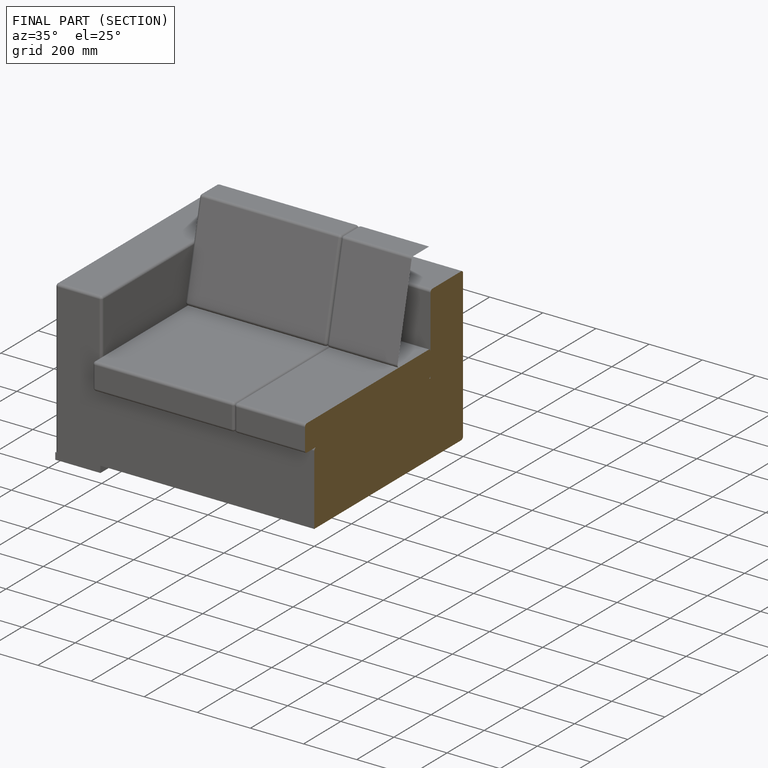
[diagram: finished part — half-section view (interior)]
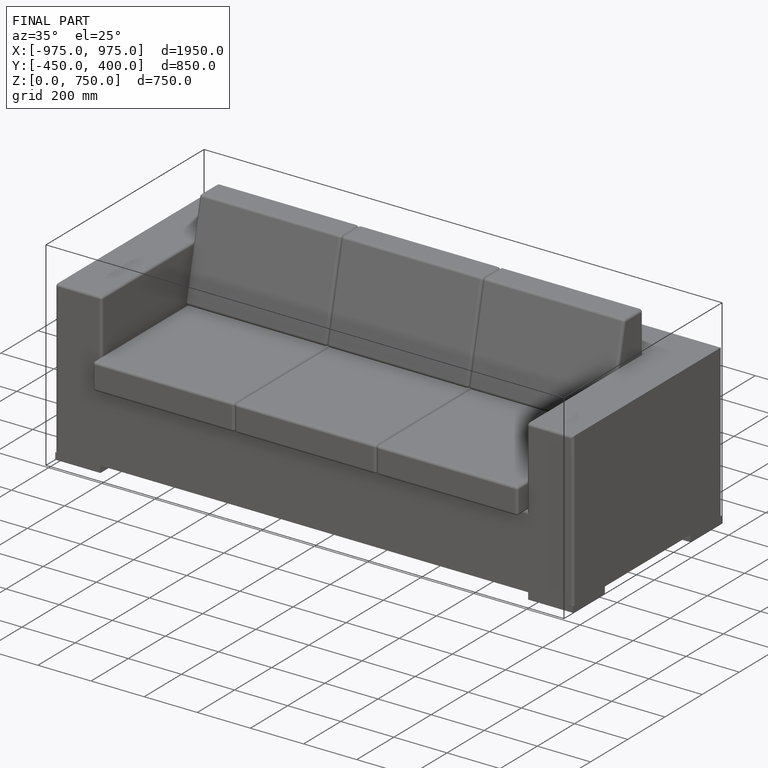
[diagram: finished part — iso view with bounding-box wireframe]
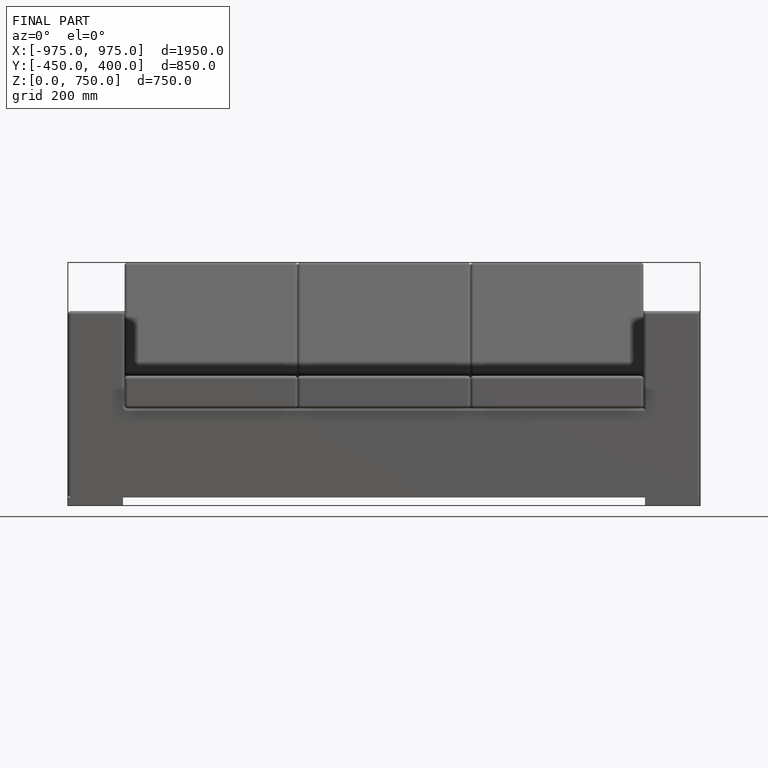
[diagram: finished part — front view with bounding-box wireframe]
